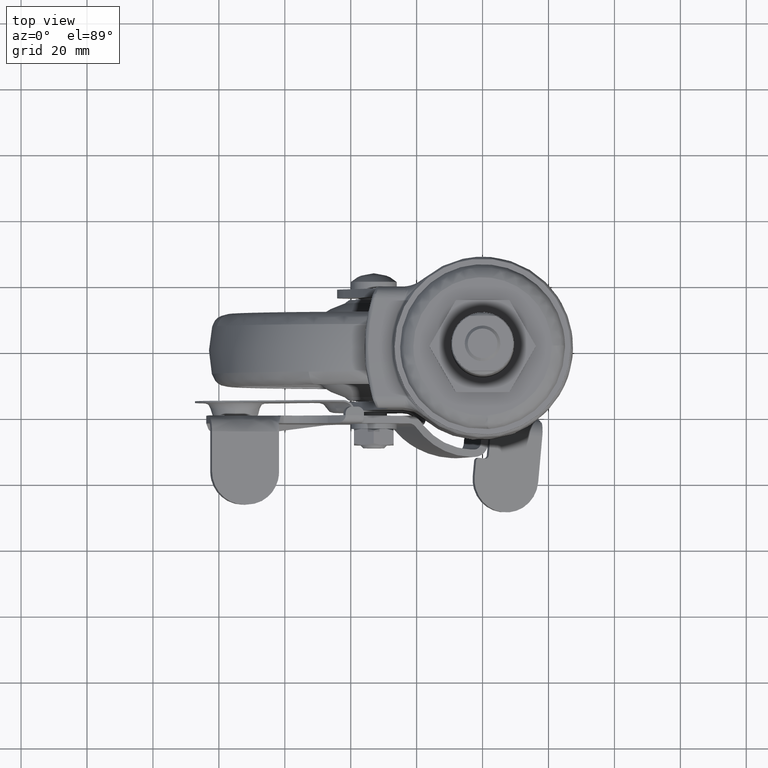
[diagram: clean part render]
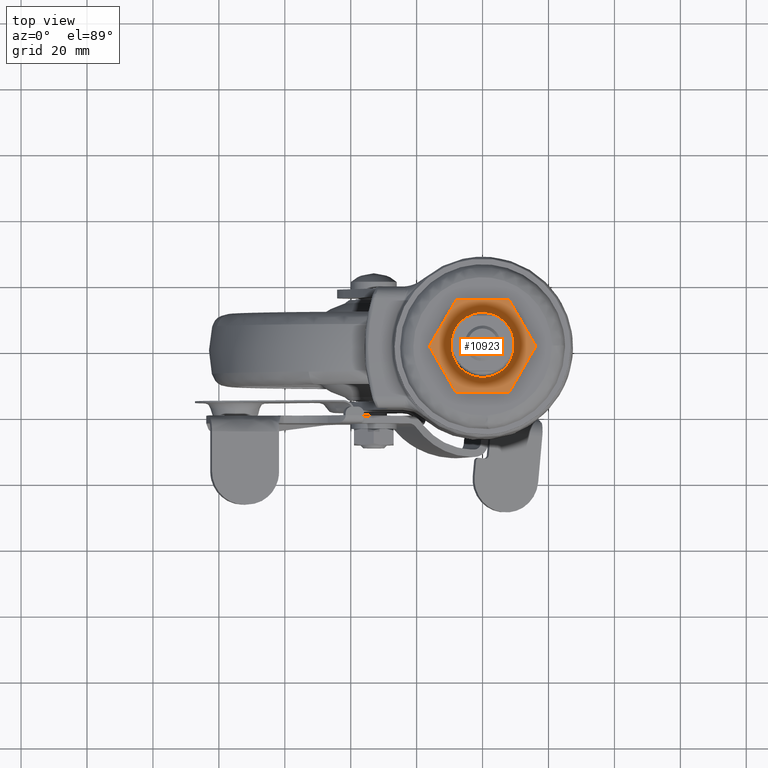
[diagram: same view with one face highlighted and labeled with its STEP entity id]
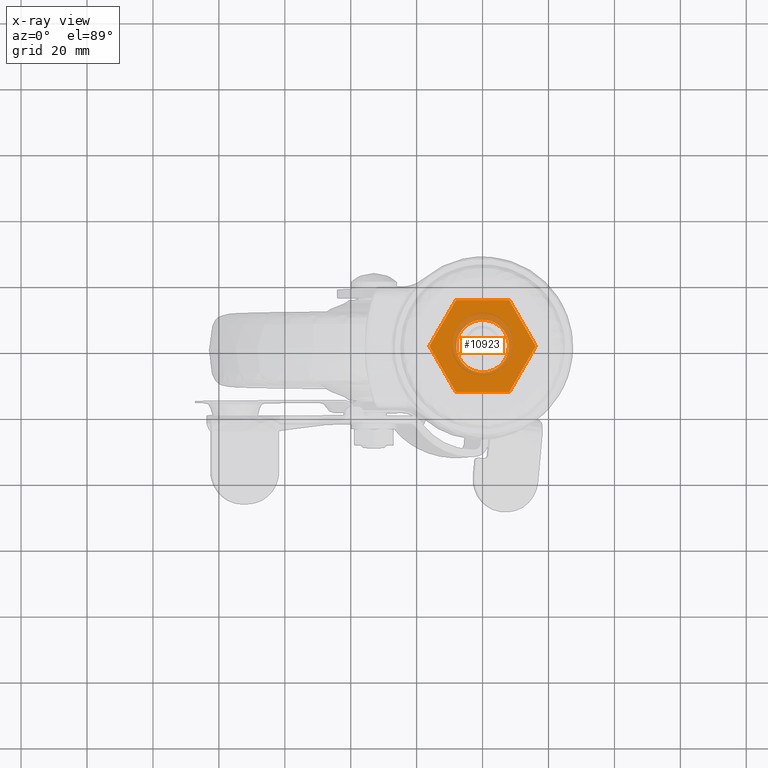
[diagram: x-ray of the same camera — body ghosted, the highlighted face saturated]
A machine part, top view. The second image highlights one B-rep face of the part: STEP entity #10923.
The next image is the same camera in x-ray: the body ghosted, the highlighted face saturated — about 19% of this face is hidden behind the body in this view.
In plain terms, the highlighted face is a freeform B-spline surface patch.
Its self-contained STEP definition (entity closure, byte-faithful):
#10103=CARTESIAN_POINT('',(-0.200789467345727,7.987476710438043,1.156027E-013));
#10104=VERTEX_POINT('',#10103);
#10105=CARTESIAN_POINT('',(7.990000000000000,0.0,0.0));
#10106=VERTEX_POINT('',#10105);
#10107=CARTESIAN_POINT('',(-0.200789467345727,7.987476710438043,1.156027E-013));
#10108=CARTESIAN_POINT('',(-0.100410590461798,7.990000000000001,1.136868E-013));
#10109=CARTESIAN_POINT('',(0.0,7.990000000000000,1.136868E-013));
#10110=CARTESIAN_POINT('',(7.990000000000000,7.990000000000000,1.136868E-013));
#10111=CARTESIAN_POINT('',(7.990000000000000,0.0,0.0));
#10119=(BOUNDED_CURVE()B_SPLINE_CURVE(2,(#10107,#10108,#10109,#10110,#10111),.UNSPECIFIED.,.F.,.U.)B_SPLINE_CURVE_WITH_KNOTS((3,2,3),(0.245579891603572,0.250000000000000,0.500000000000000),.UNSPECIFIED.)CURVE()GEOMETRIC_REPRESENTATION_ITEM()RATIONAL_B_SPLINE_CURVE((0.989826157305835,0.994821520897063,1.0,0.707106781186548,1.0))REPRESENTATION_ITEM(''));
#10120=EDGE_CURVE('',#10104,#10106,#10119,.T.);
#10139=CARTESIAN_POINT('',(-7.987476710583591,-0.200789467366317,1.155715E-013));
#10140=VERTEX_POINT('',#10139);
#10154=CARTESIAN_POINT('',(7.990000000000000,0.0,0.0));
#10155=CARTESIAN_POINT('',(7.990000000000000,-7.990000000000000,1.136868E-013));
#10156=CARTESIAN_POINT('',(0.0,-7.990000000000000,1.136868E-013));
#10157=CARTESIAN_POINT('',(-7.791671223245671,-7.990000000000001,1.136868E-013));
#10158=CARTESIAN_POINT('',(-7.987476710583591,-0.200789467366316,1.155715E-013));
#10166=(BOUNDED_CURVE()B_SPLINE_CURVE(2,(#10154,#10155,#10156,#10157,#10158),.UNSPECIFIED.,.F.,.U.)B_SPLINE_CURVE_WITH_KNOTS((3,2,3),(0.500000000000000,0.750000000000000,0.995579891602831),.UNSPECIFIED.)CURVE()GEOMETRIC_REPRESENTATION_ITEM()RATIONAL_B_SPLINE_CURVE((1.0,0.707106781186548,1.0,0.712285260290352,0.989826157304161))REPRESENTATION_ITEM(''));
#10167=EDGE_CURVE('',#10106,#10140,#10166,.T.);
#10189=CARTESIAN_POINT('',(-7.990000000000000,0.0,1.136868E-013));
#10190=VERTEX_POINT('',#10189);
#10191=CARTESIAN_POINT('',(-7.990000000000000,0.0,1.136868E-013));
#10192=CARTESIAN_POINT('',(-7.990000000000000,7.791671223278673,1.136868E-013));
#10193=CARTESIAN_POINT('',(-0.200789467345726,7.987476710438042,1.156027E-013));
#10201=(BOUNDED_CURVE()B_SPLINE_CURVE(2,(#10191,#10192,#10193),.UNSPECIFIED.,.F.,.U.)B_SPLINE_CURVE_WITH_KNOTS((3,3),(0.0,0.245579891603572),.UNSPECIFIED.)CURVE()GEOMETRIC_REPRESENTATION_ITEM()RATIONAL_B_SPLINE_CURVE((1.0,0.712285260289484,0.989826157305835))REPRESENTATION_ITEM(''));
#10202=EDGE_CURVE('',#10190,#10104,#10201,.T.);
#10204=CARTESIAN_POINT('',(-7.987476710583591,-0.200789467366316,1.155715E-013));
#10205=CARTESIAN_POINT('',(-7.989999999999999,-0.100410590478726,1.136868E-013));
#10206=CARTESIAN_POINT('',(-7.990000000000000,0.0,1.136868E-013));
#10214=(BOUNDED_CURVE()B_SPLINE_CURVE(2,(#10204,#10205,#10206),.UNSPECIFIED.,.F.,.U.)B_SPLINE_CURVE_WITH_KNOTS((3,3),(0.995579891602831,1.0),.UNSPECIFIED.)CURVE()GEOMETRIC_REPRESENTATION_ITEM()RATIONAL_B_SPLINE_CURVE((0.989826157304160,0.994821520896195,1.0))REPRESENTATION_ITEM(''));
#10215=EDGE_CURVE('',#10140,#10190,#10214,.T.);
#10721=CARTESIAN_POINT('',(16.165807999999998,0.0,0.0));
#10722=VERTEX_POINT('',#10721);
#10723=CARTESIAN_POINT('',(8.082903999999900,14.0,0.0));
#10724=VERTEX_POINT('',#10723);
#10725=CARTESIAN_POINT('',(16.165807999999998,0.0,0.0));
#10726=CARTESIAN_POINT('',(8.082903999999900,14.0,0.0));
#10727=QUASI_UNIFORM_CURVE('',1,(#10725,#10726),.UNSPECIFIED.,.F.,.U.);
#10728=EDGE_CURVE('',#10722,#10724,#10727,.T.);
#10757=CARTESIAN_POINT('',(8.082903999999900,-14.0,0.0));
#10758=VERTEX_POINT('',#10757);
#10759=CARTESIAN_POINT('',(8.082903999999900,-14.0,0.0));
#10760=CARTESIAN_POINT('',(16.165807999999998,0.0,0.0));
#10761=QUASI_UNIFORM_CURVE('',1,(#10759,#10760),.UNSPECIFIED.,.F.,.U.);
#10762=EDGE_CURVE('',#10758,#10722,#10761,.T.);
#10785=CARTESIAN_POINT('',(-8.082903000000000,-14.0,0.0));
#10786=VERTEX_POINT('',#10785);
#10787=CARTESIAN_POINT('',(-8.082903000000000,-14.0,0.0));
#10788=CARTESIAN_POINT('',(8.082903999999900,-14.0,0.0));
#10789=QUASI_UNIFORM_CURVE('',1,(#10787,#10788),.UNSPECIFIED.,.F.,.U.);
#10790=EDGE_CURVE('',#10786,#10758,#10789,.T.);
#10813=CARTESIAN_POINT('',(-16.165807000000100,0.0,0.0));
#10814=VERTEX_POINT('',#10813);
#10815=CARTESIAN_POINT('',(-16.165807000000100,0.0,0.0));
#10816=CARTESIAN_POINT('',(-8.082903000000000,-14.0,0.0));
#10817=QUASI_UNIFORM_CURVE('',1,(#10815,#10816),.UNSPECIFIED.,.F.,.U.);
#10818=EDGE_CURVE('',#10814,#10786,#10817,.T.);
#10841=CARTESIAN_POINT('',(-8.082903000000000,14.0,0.0));
#10842=VERTEX_POINT('',#10841);
#10843=CARTESIAN_POINT('',(-8.082903000000000,14.0,0.0));
#10844=CARTESIAN_POINT('',(-16.165807000000100,0.0,0.0));
#10845=QUASI_UNIFORM_CURVE('',1,(#10843,#10844),.UNSPECIFIED.,.F.,.U.);
#10846=EDGE_CURVE('',#10842,#10814,#10845,.T.);
#10869=CARTESIAN_POINT('',(8.082903999999900,14.0,0.0));
#10870=CARTESIAN_POINT('',(-8.082903000000000,14.0,0.0));
#10871=QUASI_UNIFORM_CURVE('',1,(#10869,#10870),.UNSPECIFIED.,.F.,.U.);
#10872=EDGE_CURVE('',#10724,#10842,#10871,.T.);
#10904=CARTESIAN_POINT('',(-17.780772017103370,-15.398599945730570,0.0));
#10905=CARTESIAN_POINT('',(17.780773017103272,-15.398599945730570,0.0));
#10906=CARTESIAN_POINT('',(-17.780772017103370,15.398600696749090,0.0));
#10907=CARTESIAN_POINT('',(17.780773017103272,15.398600696749090,0.0));
#10908=B_SPLINE_SURFACE_WITH_KNOTS('',1,1,((#10904,#10906),(#10905,#10907)),.UNSPECIFIED.,.F.,.F.,.U.,(2,2),(2,2),(0.0,35.561545034206638),(0.0,30.797200642479659),.UNSPECIFIED.);
#10909=ORIENTED_EDGE('',*,*,#10872,.T.);
#10910=ORIENTED_EDGE('',*,*,#10846,.T.);
#10911=ORIENTED_EDGE('',*,*,#10818,.T.);
#10912=ORIENTED_EDGE('',*,*,#10790,.T.);
#10913=ORIENTED_EDGE('',*,*,#10762,.T.);
#10914=ORIENTED_EDGE('',*,*,#10728,.T.);
#10915=EDGE_LOOP('',(#10909,#10910,#10911,#10912,#10913,#10914));
#10916=FACE_OUTER_BOUND('',#10915,.T.);
#10917=ORIENTED_EDGE('',*,*,#10167,.T.);
#10918=ORIENTED_EDGE('',*,*,#10215,.T.);
#10919=ORIENTED_EDGE('',*,*,#10202,.T.);
#10920=ORIENTED_EDGE('',*,*,#10120,.T.);
#10921=EDGE_LOOP('',(#10917,#10918,#10919,#10920));
#10922=FACE_BOUND('',#10921,.T.);
#10923=ADVANCED_FACE('',(#10916,#10922),#10908,.T.);